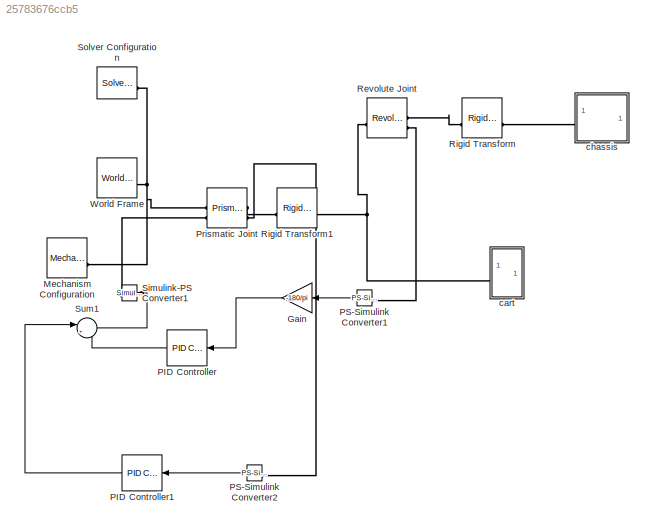
MODEL slx_25783676ccb5
KIND model
CONFIG AbsTol = 1e-3
CONFIG EnableMultiTasking = on
CONFIG FixedStep = auto
CONFIG MaxStep = auto
CONFIG MinStep = auto
CONFIG RelTol = 1e-3
CONFIG SampleTimeConstraint = Unconstrained
CONFIG SolverName = VariableStepAuto
CONFIG StartTime = 0.0
CONFIG StopTime = 100.0
BLOCK [Gain] Gain
  Gain = -180/pi
  NameLocation = top
BLOCK [Reference] Mechanism Configuration  REF=sm_lib/Utilities/Mechanism
Configuration
  SourceBlock = sm_lib/Utilities/Mechanism\nConfiguration
  SourceType = Mechanism\nConfiguration
BLOCK [Reference] PID Controller  REF=slpidlib/PID Controller
  LibrarySourceBlock = simulink/Continuous/PID Controller
  NameLocation = top
  SourceBlock = slpidlib/PID Controller
  SourceType = PID 1dof
BLOCK [Reference] PID Controller1  REF=slpidlib/PID Controller
  LibrarySourceBlock = simulink/Continuous/PID Controller
  NameLocation = top
  SourceBlock = slpidlib/PID Controller
  SourceType = PID 1dof
BLOCK [Reference] PS-Simulink Converter1  REF=nesl_utility/PS-Simulink
Converter
  NameLocation = top
  SourceBlock = nesl_utility/PS-Simulink\nConverter
  SourceType = PS-Simulink\nConverter
BLOCK [Reference] PS-Simulink Converter2  REF=nesl_utility/PS-Simulink
Converter
  NameLocation = right
  SourceBlock = nesl_utility/PS-Simulink\nConverter
  SourceType = PS-Simulink\nConverter
BLOCK [Reference] Prismatic Joint  REF=sm_lib/Joints/Prismatic
Joint
  SourceBlock = sm_lib/Joints/Prismatic\nJoint
  SourceType = Prismatic\nJoint
BLOCK [Reference] Revolute Joint  REF=sm_lib/Joints/Revolute Joint
  SourceBlock = sm_lib/Joints/Revolute Joint
  SourceType = Revolute Joint
BLOCK [Reference] Rigid Transform  REF=sm_lib/Frames and
Transforms/Rigid
Transform
  SourceBlock = sm_lib/Frames and\nTransforms/Rigid\nTransform
  SourceType = Rigid\nTransform
BLOCK [Reference] Rigid Transform1  REF=sm_lib/Frames and
Transforms/Rigid
Transform
  SourceBlock = sm_lib/Frames and\nTransforms/Rigid\nTransform
  SourceType = Rigid\nTransform
BLOCK [Reference] Simulink-PS Converter1  REF=nesl_utility/Simulink-PS
Converter
  NameLocation = top
  SourceBlock = nesl_utility/Simulink-PS\nConverter
  SourceType = Simulink-PS\nConverter
BLOCK [Reference] Solver Configuration  REF=nesl_utility/Solver
Configuration
  SourceBlock = nesl_utility/Solver\nConfiguration
  SourceType = Solver\nConfiguration
BLOCK [Sum] Sum1
  Inputs = |++
BLOCK [Reference] World Frame  REF=sm_lib/Frames and
Transforms/World Frame
  SourceBlock = sm_lib/Frames and\nTransforms/World Frame
  SourceType = World Frame
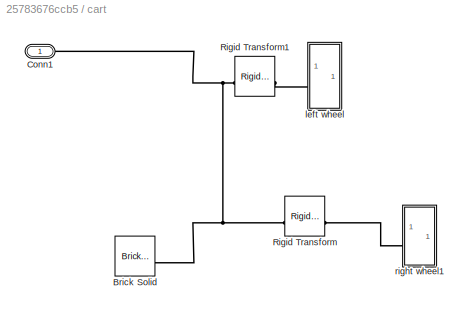
BLOCK [SubSystem] cart
BLOCK [Reference] cart/Brick Solid  REF=sm_lib/Body Elements/Brick Solid
  SourceBlock = sm_lib/Body Elements/Brick Solid
  SourceType = Brick Solid
BLOCK [PMIOPort] cart/Conn1
  Side = Left
BLOCK [Reference] cart/Rigid Transform  REF=sm_lib/Frames and
Transforms/Rigid
Transform
  SourceBlock = sm_lib/Frames and\nTransforms/Rigid\nTransform
  SourceType = Rigid\nTransform
BLOCK [Reference] cart/Rigid Transform1  REF=sm_lib/Frames and
Transforms/Rigid
Transform
  SourceBlock = sm_lib/Frames and\nTransforms/Rigid\nTransform
  SourceType = Rigid\nTransform
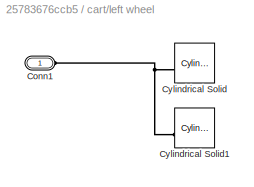
BLOCK [SubSystem] cart/left wheel
BLOCK [PMIOPort] cart/left wheel/Conn1
  Side = Left
BLOCK [Reference] cart/left wheel/Cylindrical Solid  REF=sm_lib/Body Elements/Cylindrical Solid
  NameLocation = top
  SourceBlock = sm_lib/Body Elements/Cylindrical Solid
  SourceType = Cylindrical Solid
BLOCK [Reference] cart/left wheel/Cylindrical Solid1  REF=sm_lib/Body Elements/Cylindrical Solid
  NameLocation = top
  SourceBlock = sm_lib/Body Elements/Cylindrical Solid
  SourceType = Cylindrical Solid
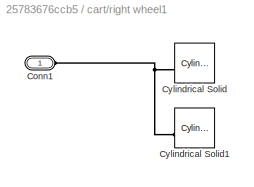
BLOCK [SubSystem] cart/right wheel1
BLOCK [PMIOPort] cart/right wheel1/Conn1
  Side = Left
BLOCK [Reference] cart/right wheel1/Cylindrical Solid  REF=sm_lib/Body Elements/Cylindrical Solid
  NameLocation = top
  SourceBlock = sm_lib/Body Elements/Cylindrical Solid
  SourceType = Cylindrical Solid
BLOCK [Reference] cart/right wheel1/Cylindrical Solid1  REF=sm_lib/Body Elements/Cylindrical Solid
  NameLocation = top
  SourceBlock = sm_lib/Body Elements/Cylindrical Solid
  SourceType = Cylindrical Solid
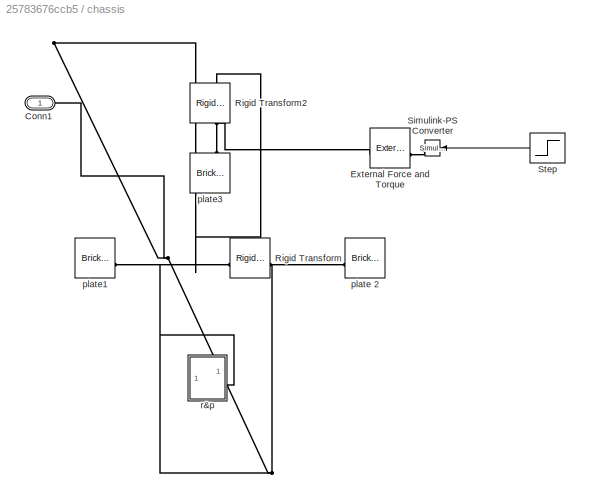
BLOCK [SubSystem] chassis
BLOCK [PMIOPort] chassis/Conn1
  Side = Left
BLOCK [Reference] chassis/External Force and Torque  REF=sm_lib/Forces and
Torques/External Force
and Torque
  NameLocation = top
  SourceBlock = sm_lib/Forces and\nTorques/External Force\nand Torque
  SourceType = External Force\nand Torque
BLOCK [Reference] chassis/Rigid Transform  REF=sm_lib/Frames and
Transforms/Rigid
Transform
  SourceBlock = sm_lib/Frames and\nTransforms/Rigid\nTransform
  SourceType = Rigid\nTransform
BLOCK [Reference] chassis/Rigid Transform2  REF=sm_lib/Frames and
Transforms/Rigid
Transform
  NameLocation = left
  SourceBlock = sm_lib/Frames and\nTransforms/Rigid\nTransform
  SourceType = Rigid\nTransform
BLOCK [Reference] chassis/Simulink-PS Converter  REF=nesl_utility/Simulink-PS
Converter
  NameLocation = top
  SourceBlock = nesl_utility/Simulink-PS\nConverter
  SourceType = Simulink-PS\nConverter
BLOCK [Step] chassis/Step
  After = 0
  Before = 10
  NameLocation = top
  SampleTime = 0
  Time = 0.01
BLOCK [Reference] chassis/plate 2  REF=sm_lib/Body Elements/Brick Solid
  NameLocation = right
  SourceBlock = sm_lib/Body Elements/Brick Solid
  SourceType = Brick Solid
BLOCK [Reference] chassis/plate1  REF=sm_lib/Body Elements/Brick Solid
  NameLocation = left
  SourceBlock = sm_lib/Body Elements/Brick Solid
  SourceType = Brick Solid
BLOCK [Reference] chassis/plate3  REF=sm_lib/Body Elements/Brick Solid
  SourceBlock = sm_lib/Body Elements/Brick Solid
  SourceType = Brick Solid
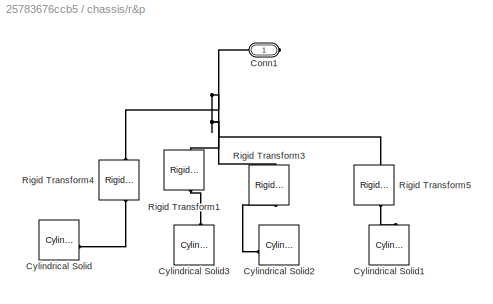
BLOCK [SubSystem] chassis/r&p
BLOCK [PMIOPort] chassis/r&p/Conn1
  Side = Right
BLOCK [Reference] chassis/r&p/Cylindrical Solid  REF=sm_lib/Body Elements/Cylindrical Solid
  SourceBlock = sm_lib/Body Elements/Cylindrical Solid
  SourceType = Cylindrical Solid
BLOCK [Reference] chassis/r&p/Cylindrical Solid1  REF=sm_lib/Body Elements/Cylindrical Solid
  NameLocation = right
  SourceBlock = sm_lib/Body Elements/Cylindrical Solid
  SourceType = Cylindrical Solid
BLOCK [Reference] chassis/r&p/Cylindrical Solid2  REF=sm_lib/Body Elements/Cylindrical Solid
  NameLocation = top
  SourceBlock = sm_lib/Body Elements/Cylindrical Solid
  SourceType = Cylindrical Solid
BLOCK [Reference] chassis/r&p/Cylindrical Solid3  REF=sm_lib/Body Elements/Cylindrical Solid
  NameLocation = right
  SourceBlock = sm_lib/Body Elements/Cylindrical Solid
  SourceType = Cylindrical Solid
BLOCK [Reference] chassis/r&p/Rigid Transform1  REF=sm_lib/Frames and
Transforms/Rigid
Transform
  NameLocation = left
  SourceBlock = sm_lib/Frames and\nTransforms/Rigid\nTransform
  SourceType = Rigid\nTransform
BLOCK [Reference] chassis/r&p/Rigid Transform3  REF=sm_lib/Frames and
Transforms/Rigid
Transform
  NameLocation = left
  SourceBlock = sm_lib/Frames and\nTransforms/Rigid\nTransform
  SourceType = Rigid\nTransform
BLOCK [Reference] chassis/r&p/Rigid Transform4  REF=sm_lib/Frames and
Transforms/Rigid
Transform
  NameLocation = left
  SourceBlock = sm_lib/Frames and\nTransforms/Rigid\nTransform
  SourceType = Rigid\nTransform
BLOCK [Reference] chassis/r&p/Rigid Transform5  REF=sm_lib/Frames and
Transforms/Rigid
Transform
  NameLocation = left
  SourceBlock = sm_lib/Frames and\nTransforms/Rigid\nTransform
  SourceType = Rigid\nTransform
LINE Gain:1 -> PID Controller:1
LINE PID Controller1:1 -> Sum1:1
LINE PID Controller:1 -> Sum1:2
LINE PS-Simulink Converter1:1 -> Gain:1
LINE PS-Simulink Converter2:1 -> PID Controller1:1
LINE Sum1:1 -> Simulink-PS Converter1:1
LINE chassis/Step:1 -> chassis/Simulink-PS Converter:1
PNET net1: Mechanism Configuration:RConn1 -- Prismatic Joint:LConn1 -- Solver Configuration:RConn1 -- World Frame:RConn1
PLINE PS-Simulink Converter1:LConn1 -- Revolute Joint:RConn2
PLINE PS-Simulink Converter2:LConn1 -- Prismatic Joint:RConn2
PLINE Prismatic Joint:LConn2 -- Simulink-PS Converter1:RConn1
PLINE Prismatic Joint:RConn1 -- Rigid Transform1:LConn1
PNET net2: Revolute Joint:LConn1 -- Rigid Transform1:RConn1 -- cart:LConn1
PLINE Revolute Joint:RConn1 -- Rigid Transform:LConn1
PLINE Rigid Transform:RConn1 -- chassis:LConn1
PNET net3: cart/Brick Solid:RConn1 -- cart/Conn1:RConn1 -- cart/Rigid Transform1:LConn1 -- cart/Rigid Transform:LConn1
PLINE cart/Rigid Transform1:RConn1 -- cart/left wheel:LConn1
PLINE cart/Rigid Transform:RConn1 -- cart/right wheel1:LConn1
PNET net4: cart/left wheel/Conn1:RConn1 -- cart/left wheel/Cylindrical Solid1:RConn1 -- cart/left wheel/Cylindrical Solid:RConn1
PNET net5: cart/right wheel1/Conn1:RConn1 -- cart/right wheel1/Cylindrical Solid1:RConn1 -- cart/right wheel1/Cylindrical Solid:RConn1
PNET net6: chassis/Conn1:RConn1 -- chassis/Rigid Transform2:LConn1 -- chassis/Rigid Transform:LConn1 -- chassis/plate1:RConn1 -- chassis/r&p:RConn1
PLINE chassis/External Force and Torque:LConn1 -- chassis/Simulink-PS Converter:RConn1
PNET net7: chassis/External Force and Torque:RConn1 -- chassis/Rigid Transform2:RConn1 -- chassis/plate3:RConn1
PLINE chassis/Rigid Transform:RConn1 -- chassis/plate 2:RConn1
PNET net8: chassis/r&p/Conn1:RConn1 -- chassis/r&p/Rigid Transform1:LConn1 -- chassis/r&p/Rigid Transform3:LConn1 -- chassis/r&p/Rigid Transform4:LConn1 -- chassis/r&p/Rigid Transform5:LConn1
PLINE chassis/r&p/Cylindrical Solid1:RConn1 -- chassis/r&p/Rigid Transform5:RConn1
PLINE chassis/r&p/Cylindrical Solid2:RConn1 -- chassis/r&p/Rigid Transform3:RConn1
PLINE chassis/r&p/Cylindrical Solid3:RConn1 -- chassis/r&p/Rigid Transform1:RConn1
PLINE chassis/r&p/Cylindrical Solid:RConn1 -- chassis/r&p/Rigid Transform4:RConn1
note: PNET lines group multi-terminal physical nets as a canonical sorted terminal list (undirected conserving connections); 2-terminal nets keep the pairwise PLINE form
